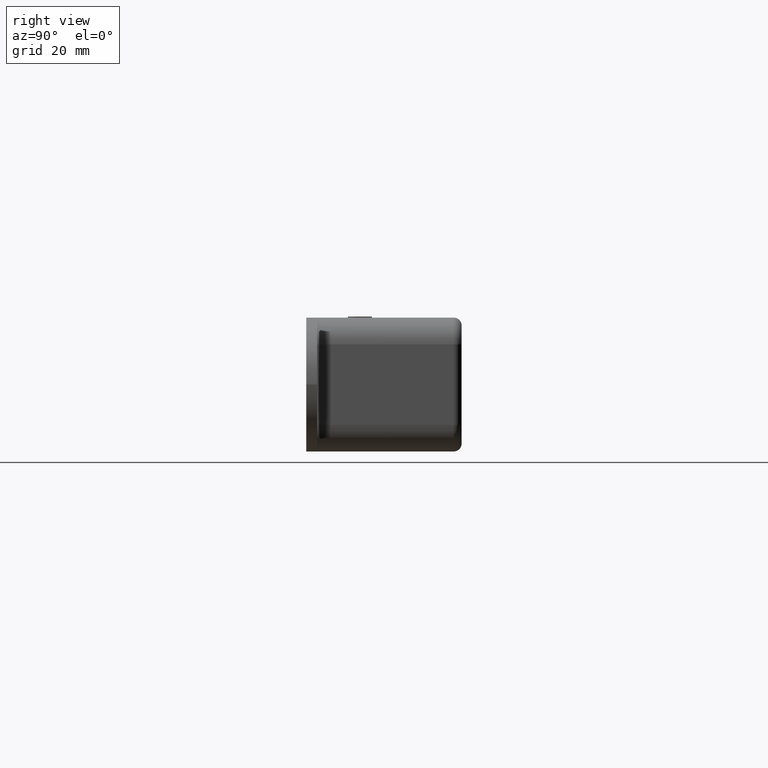
[diagram: clean part render]
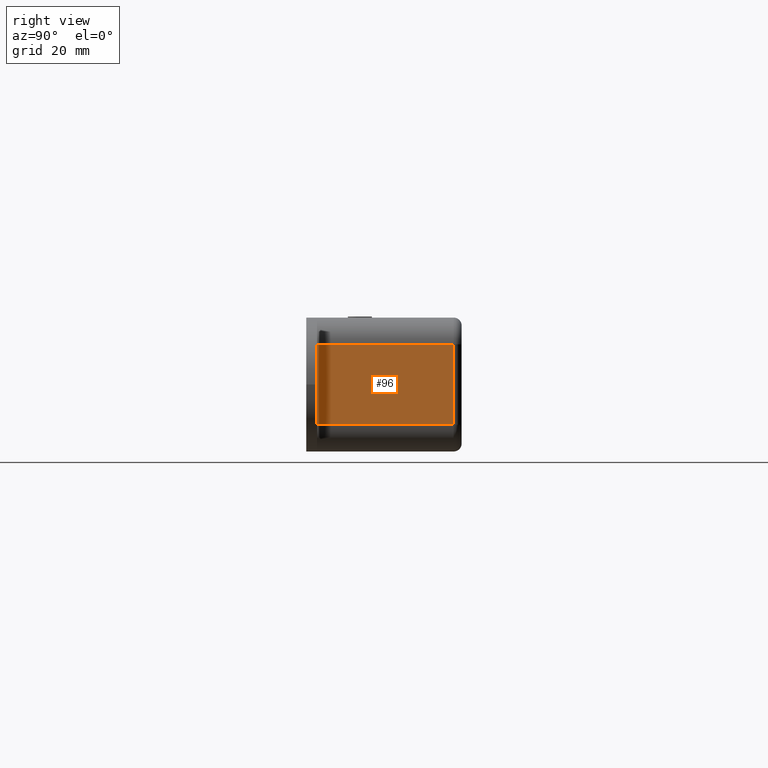
[diagram: same view with one face highlighted and labeled with its STEP entity id]
A machine part, right view. The second image highlights one B-rep face of the part: STEP entity #96.
In plain terms, the highlighted planar face has unit normal (1, -0, 0).
Its self-contained STEP definition (entity closure, byte-faithful):
#96 = ADVANCED_FACE( '', ( #663 ), #664, .T. );
#663 = FACE_OUTER_BOUND( '', #1687, .T. );
#664 = PLANE( '', #1688 );
#1687 = EDGE_LOOP( '', ( #3143, #3144, #3145, #3146 ) );
#1688 = AXIS2_PLACEMENT_3D( '', #3147, #3148, #3149 );
#3143 = ORIENTED_EDGE( '', *, *, #6908, .T. );
#3144 = ORIENTED_EDGE( '', *, *, #6909, .T. );
#3145 = ORIENTED_EDGE( '', *, *, #6910, .T. );
#3146 = ORIENTED_EDGE( '', *, *, #6911, .F. );
#3147 = CARTESIAN_POINT( '', ( 40.5000000000000, 1.99999999999999, -12.5000000000000 ) );
#3148 = DIRECTION( '', ( 1.00000000000000, -6.93889390390723E-017, 0.000000000000000 ) );
#3149 = DIRECTION( '', ( -6.93889390390723E-017, -1.00000000000000, 0.000000000000000 ) );
#6908 = EDGE_CURVE( '', #8543, #8544, #8545, .T. );
#6909 = EDGE_CURVE( '', #8544, #8546, #8547, .T. );
#6910 = EDGE_CURVE( '', #8546, #8548, #8549, .F. );
#6911 = EDGE_CURVE( '', #8543, #8548, #8550, .T. );
#8543 = VERTEX_POINT( '', #10966 );
#8544 = VERTEX_POINT( '', #10967 );
#8545 = LINE( '', #10968, #10969 );
#8546 = VERTEX_POINT( '', #10970 );
#8547 = LINE( '', #10971, #10972 );
#8548 = VERTEX_POINT( '', #10973 );
#8549 = LINE( '', #10974, #10975 );
#8550 = LINE( '', #10976, #10977 );
#10966 = CARTESIAN_POINT( '', ( 40.5000000000000, 1.99999999999999, -7.50000000000000 ) );
#10967 = CARTESIAN_POINT( '', ( 40.5000000000000, 27.5000000000000, -7.50000000000000 ) );
#10968 = CARTESIAN_POINT( '', ( 40.5000000000000, 1.99999999999999, -7.50000000000000 ) );
#10969 = VECTOR( '', #13228, 1000.00000000000 );
#10970 = CARTESIAN_POINT( '', ( 40.5000000000000, 27.5000000000000, 7.50000000000000 ) );
#10971 = CARTESIAN_POINT( '', ( 40.5000000000000, 27.5000000000000, -12.5000000000000 ) );
#10972 = VECTOR( '', #13229, 1000.00000000000 );
#10973 = CARTESIAN_POINT( '', ( 40.5000000000000, 1.99999999999999, 7.50000000000000 ) );
#10974 = CARTESIAN_POINT( '', ( 40.5000000000000, 1.99999999999999, 7.50000000000000 ) );
#10975 = VECTOR( '', #13230, 1000.00000000000 );
#10976 = CARTESIAN_POINT( '', ( 40.5000000000000, 1.99999999999999, -12.5000000000000 ) );
#10977 = VECTOR( '', #13231, 1000.00000000000 );
#13228 = DIRECTION( '', ( 6.93889390390723E-017, 1.00000000000000, 0.000000000000000 ) );
#13229 = DIRECTION( '', ( 0.000000000000000, 0.000000000000000, 1.00000000000000 ) );
#13230 = DIRECTION( '', ( 6.93889390390723E-017, 1.00000000000000, 0.000000000000000 ) );
#13231 = DIRECTION( '', ( 0.000000000000000, 0.000000000000000, 1.00000000000000 ) );